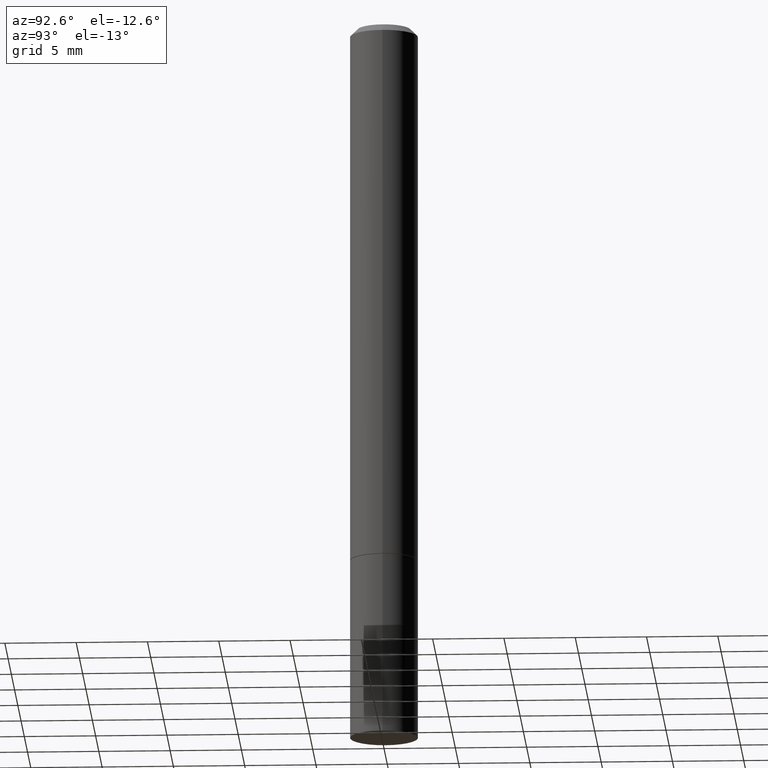
[diagram: clean part render]
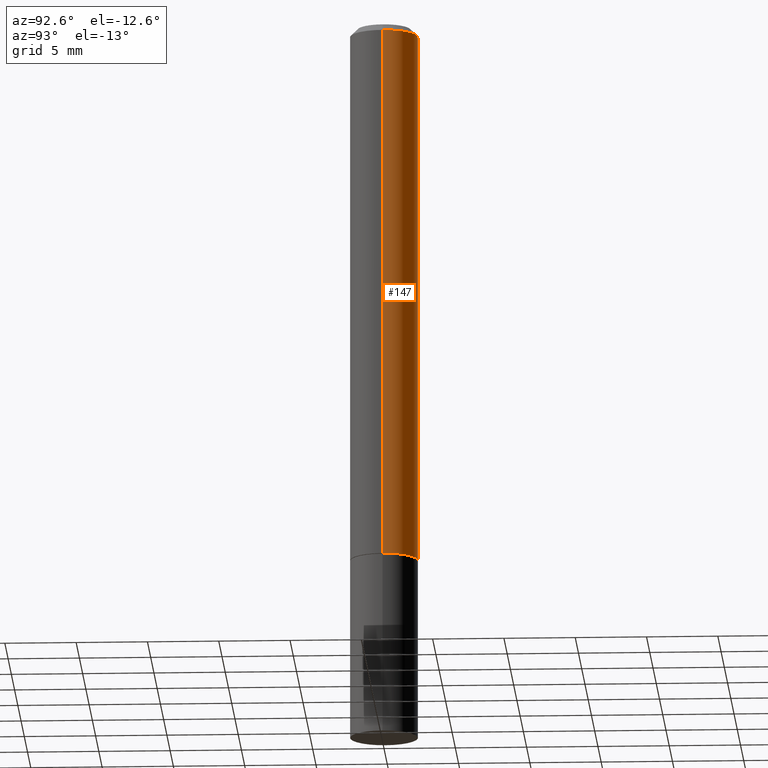
[diagram: same view with one face highlighted and labeled with its STEP entity id]
A machine part, auxiliary view. The second image highlights one B-rep face of the part: STEP entity #147.
In plain terms, the highlighted cylindrical surface (edge-blend (fillet) strip) has radius 2.3812 mm, axis along (-0, 0, 1).
Its self-contained STEP definition (entity closure, byte-faithful):
#21 = CARTESIAN_POINT ( 'NONE',  ( -0.09375000000000001388, -1.985646262076272943E-15, -1.498999999999999666 ) ) ;
#40 = VECTOR ( 'NONE', #208, 39.37007874015748143 ) ;
#43 = VERTEX_POINT ( 'NONE', #21 ) ;
#78 = VERTEX_POINT ( 'NONE', #133 ) ;
#84 = AXIS2_PLACEMENT_3D ( 'NONE', #97, #186, #279 ) ;
#88 = EDGE_CURVE ( 'NONE', #341, #78, #103, .T. ) ;
#97 = CARTESIAN_POINT ( 'NONE',  ( 3.665757740471518732E-29, -5.233730526925875170E-15, -1.498999999999999666 ) ) ;
#103 = LINE ( 'NONE', #335, #203 ) ;
#106 = FACE_OUTER_BOUND ( 'NONE', #261, .T. ) ;
#133 = CARTESIAN_POINT ( 'NONE',  ( 0.09374999999999981959, -7.130013140679429031E-16, -0.02000000000000003858 ) ) ;
#142 = CIRCLE ( 'NONE', #84, 0.09375000000000001388 ) ;
#144 = CYLINDRICAL_SURFACE ( 'NONE', #233, 0.09374999999999991673 ) ;
#147 = ADVANCED_FACE ( 'NONE', ( #106 ), #144, .T. ) ;
#148 = CARTESIAN_POINT ( 'NONE',  ( 4.890937612370282792E-31, -6.982962677686303935E-17, -0.02000000000000003858 ) ) ;
#153 = EDGE_CURVE ( 'NONE', #43, #204, #154, .T. ) ;
#154 = LINE ( 'NONE', #212, #40 ) ;
#160 = ORIENTED_EDGE ( 'NONE', *, *, #153, .T. ) ;
#171 = DIRECTION ( 'NONE',  ( 1.000000000000000000, -6.982962677686266711E-15, 4.876176775795935793E-29 ) ) ;
#186 = DIRECTION ( 'NONE',  ( -2.445468806185136597E-29, 3.491481338843145583E-15, 1.000000000000000000 ) ) ;
#193 = DIRECTION ( 'NONE',  ( -2.445468806185136877E-29, 3.491481338843145188E-15, 1.000000000000000000 ) ) ;
#195 = CARTESIAN_POINT ( 'NONE',  ( 0.000000000000000000, 0.000000000000000000, 0.000000000000000000 ) ) ;
#203 = VECTOR ( 'NONE', #193, 39.37007874015748143 ) ;
#204 = VERTEX_POINT ( 'NONE', #238 ) ;
#208 = DIRECTION ( 'NONE',  ( -2.445468806185136877E-29, 3.491481338843145188E-15, 1.000000000000000000 ) ) ;
#211 = DIRECTION ( 'NONE',  ( 1.000000000000000000, -6.982962677686267499E-15, 0.000000000000000000 ) ) ;
#212 = CARTESIAN_POINT ( 'NONE',  ( -0.09374999999999991673, 6.661338147750933326E-16, -4.611501647113969791E-30 ) ) ;
#226 = EDGE_CURVE ( 'NONE', #78, #204, #310, .T. ) ;
#233 = AXIS2_PLACEMENT_3D ( 'NONE', #195, #338, #171 ) ;
#238 = CARTESIAN_POINT ( 'NONE',  ( -0.09374999999999981959, 5.848231242562232198E-16, -0.02000000000000003858 ) ) ;
#253 = ORIENTED_EDGE ( 'NONE', *, *, #226, .F. ) ;
#254 = ORIENTED_EDGE ( 'NONE', *, *, #88, .F. ) ;
#261 = EDGE_LOOP ( 'NONE', ( #330, #160, #253, #254 ) ) ;
#279 = DIRECTION ( 'NONE',  ( 1.000000000000000000, -6.982962677686261189E-15, 0.000000000000000000 ) ) ;
#301 = CARTESIAN_POINT ( 'NONE',  ( 0.09375000000000001388, -5.888383277958961885E-15, -1.498999999999999666 ) ) ;
#310 = CIRCLE ( 'NONE', #320, 0.09374999999999981959 ) ;
#320 = AXIS2_PLACEMENT_3D ( 'NONE', #148, #348, #211 ) ;
#326 = EDGE_CURVE ( 'NONE', #341, #43, #142, .T. ) ;
#330 = ORIENTED_EDGE ( 'NONE', *, *, #326, .T. ) ;
#335 = CARTESIAN_POINT ( 'NONE',  ( 0.09374999999999991673, -6.546527510330869125E-16, 4.571415727308685602E-30 ) ) ;
#338 = DIRECTION ( 'NONE',  ( -2.445468806185136597E-29, 3.491481338843145583E-15, 1.000000000000000000 ) ) ;
#341 = VERTEX_POINT ( 'NONE', #301 ) ;
#348 = DIRECTION ( 'NONE',  ( -2.445468806185136597E-29, 3.491481338843145583E-15, 1.000000000000000000 ) ) ;